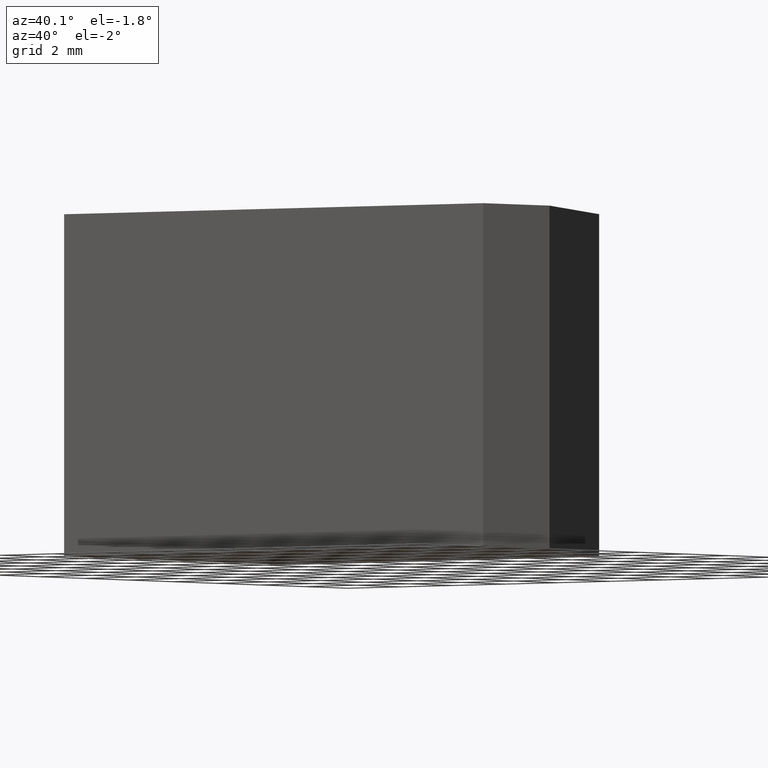
[diagram: clean part render]
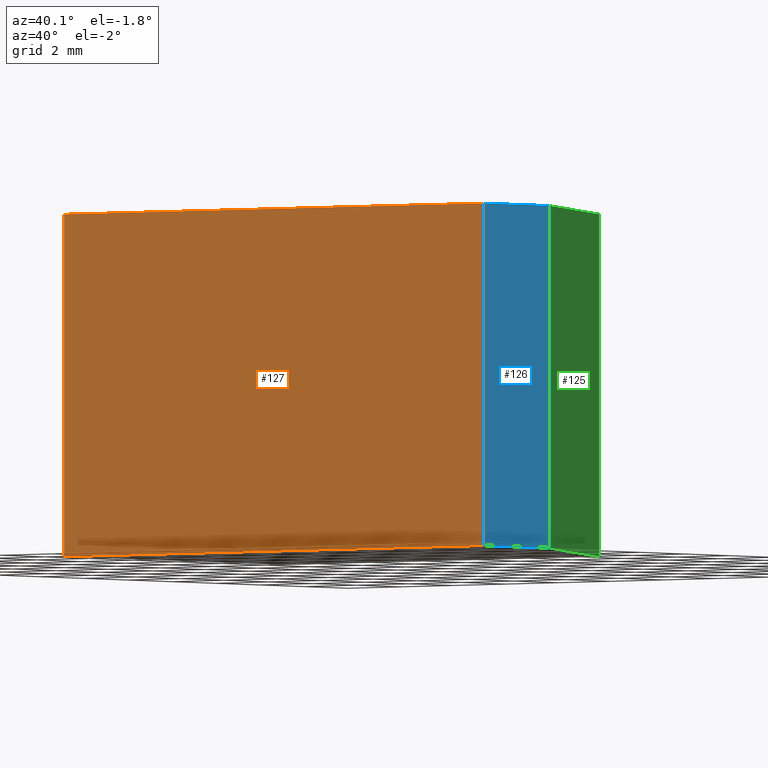
[diagram: same view with three faces highlighted in distinct colors, each labeled with its STEP entity id]
A machine part, auxiliary view with three faces highlighted in distinct colors.
Their STEP definitions:

[orange] entity #127 — the highlighted planar face has unit normal (0, -1, 0).
#21=FACE_OUTER_BOUND('',#28,.T.);
#28=EDGE_LOOP('',(#106,#107,#108,#109));
#31=LINE('',#196,#46);
#37=LINE('',#207,#52);
#43=LINE('',#219,#58);
#44=LINE('',#221,#59);
#46=VECTOR('',#164,10.);
#52=VECTOR('',#172,10.);
#58=VECTOR('',#184,10.);
#59=VECTOR('',#187,10.);
#60=VERTEX_POINT('',#192);
#62=VERTEX_POINT('',#195);
#65=VERTEX_POINT('',#203);
#69=VERTEX_POINT('',#217);
#71=EDGE_CURVE('',#62,#60,#31,.T.);
#77=EDGE_CURVE('',#65,#62,#37,.T.);
#83=EDGE_CURVE('',#60,#69,#43,.T.);
#84=EDGE_CURVE('',#69,#65,#44,.T.);
#106=ORIENTED_EDGE('',*,*,#84,.T.);
#107=ORIENTED_EDGE('',*,*,#77,.T.);
#108=ORIENTED_EDGE('',*,*,#71,.T.);
#109=ORIENTED_EDGE('',*,*,#83,.T.);
#120=PLANE('',#157);
#127=ADVANCED_FACE('',(#21),#120,.T.);
#157=AXIS2_PLACEMENT_3D('',#220,#185,#186);
#164=DIRECTION('',(1.,1.21430643318376E-16,0.));
#172=DIRECTION('',(0.,0.,-1.));
#184=DIRECTION('',(0.,0.,1.));
#185=DIRECTION('center_axis',(1.21430643318376E-16,-1.,0.));
#186=DIRECTION('ref_axis',(0.,0.,-1.));
#187=DIRECTION('',(-1.,-1.21430643318376E-16,0.));
#192=CARTESIAN_POINT('',(16.,-2.77555756156289E-16,-5.));
#195=CARTESIAN_POINT('',(1.11022302462516E-15,-2.22044604925031E-15,-5.));
#196=CARTESIAN_POINT('',(16.,-2.77555756156289E-16,-5.));
#203=CARTESIAN_POINT('',(1.11022302462516E-15,-2.22044604925031E-15,5.));
#207=CARTESIAN_POINT('',(1.11022302462516E-15,-2.22044604925031E-15,0.));
#217=CARTESIAN_POINT('',(16.,-2.77555756156289E-16,5.));
#219=CARTESIAN_POINT('',(16.,-2.77555756156289E-16,0.));
#220=CARTESIAN_POINT('Origin',(16.,-2.77555756156289E-16,0.));
#221=CARTESIAN_POINT('',(16.,-2.77555756156289E-16,5.));

[blue] entity #126 — the highlighted planar face has unit normal (1, 0, 0).
#20=FACE_OUTER_BOUND('',#27,.T.);
#27=EDGE_LOOP('',(#102,#103,#104,#105));
#30=LINE('',#194,#45);
#41=LINE('',#215,#56);
#42=LINE('',#218,#57);
#43=LINE('',#219,#58);
#45=VECTOR('',#163,10.);
#56=VECTOR('',#180,10.);
#57=VECTOR('',#183,10.);
#58=VECTOR('',#184,10.);
#60=VERTEX_POINT('',#192);
#61=VERTEX_POINT('',#193);
#68=VERTEX_POINT('',#213);
#69=VERTEX_POINT('',#217);
#70=EDGE_CURVE('',#60,#61,#30,.T.);
#81=EDGE_CURVE('',#68,#61,#41,.T.);
#82=EDGE_CURVE('',#68,#69,#42,.T.);
#83=EDGE_CURVE('',#60,#69,#43,.T.);
#102=ORIENTED_EDGE('',*,*,#82,.T.);
#103=ORIENTED_EDGE('',*,*,#83,.F.);
#104=ORIENTED_EDGE('',*,*,#70,.T.);
#105=ORIENTED_EDGE('',*,*,#81,.F.);
#119=PLANE('',#156);
#126=ADVANCED_FACE('',(#20),#119,.T.);
#156=AXIS2_PLACEMENT_3D('',#216,#181,#182);
#163=DIRECTION('',(0.,1.,0.));
#180=DIRECTION('',(0.,0.,-1.));
#181=DIRECTION('center_axis',(1.,0.,0.));
#182=DIRECTION('ref_axis',(0.,0.,-1.));
#183=DIRECTION('',(0.,-1.,0.));
#184=DIRECTION('',(0.,0.,1.));
#192=CARTESIAN_POINT('',(16.,-2.77555756156289E-16,-5.));
#193=CARTESIAN_POINT('',(16.,3.,-5.));
#194=CARTESIAN_POINT('',(16.,3.,-5.));
#213=CARTESIAN_POINT('',(16.,3.,5.));
#215=CARTESIAN_POINT('',(16.,3.,0.));
#216=CARTESIAN_POINT('Origin',(16.,3.,0.));
#217=CARTESIAN_POINT('',(16.,-2.77555756156289E-16,5.));
#218=CARTESIAN_POINT('',(16.,3.,5.));
#219=CARTESIAN_POINT('',(16.,-2.77555756156289E-16,0.));

[green] entity #125 — the highlighted planar face has unit normal (0.8682, 0.4961, 0).
#19=FACE_OUTER_BOUND('',#26,.T.);
#26=EDGE_LOOP('',(#98,#99,#100,#101));
#34=LINE('',#201,#49);
#39=LINE('',#211,#54);
#40=LINE('',#214,#55);
#41=LINE('',#215,#56);
#49=VECTOR('',#167,10.);
#54=VECTOR('',#176,10.);
#55=VECTOR('',#179,10.);
#56=VECTOR('',#180,10.);
#61=VERTEX_POINT('',#193);
#64=VERTEX_POINT('',#199);
#67=VERTEX_POINT('',#209);
#68=VERTEX_POINT('',#213);
#74=EDGE_CURVE('',#61,#64,#34,.T.);
#79=EDGE_CURVE('',#67,#64,#39,.T.);
#80=EDGE_CURVE('',#67,#68,#40,.T.);
#81=EDGE_CURVE('',#68,#61,#41,.T.);
#98=ORIENTED_EDGE('',*,*,#80,.T.);
#99=ORIENTED_EDGE('',*,*,#81,.T.);
#100=ORIENTED_EDGE('',*,*,#74,.T.);
#101=ORIENTED_EDGE('',*,*,#79,.F.);
#118=PLANE('',#155);
#125=ADVANCED_FACE('',(#19),#118,.T.);
#155=AXIS2_PLACEMENT_3D('',#212,#177,#178);
#167=DIRECTION('',(-0.496138938356834,0.868243142124459,0.));
#176=DIRECTION('',(0.,0.,-1.));
#177=DIRECTION('center_axis',(0.868243142124459,0.496138938356834,0.));
#178=DIRECTION('ref_axis',(0.,0.,-1.));
#179=DIRECTION('',(0.496138938356834,-0.868243142124459,0.));
#180=DIRECTION('',(0.,0.,-1.));
#193=CARTESIAN_POINT('',(16.,3.,-5.));
#199=CARTESIAN_POINT('',(12.,10.,-5.));
#201=CARTESIAN_POINT('',(12.,10.,-5.));
#209=CARTESIAN_POINT('',(12.,10.,5.));
#211=CARTESIAN_POINT('',(12.,10.,0.));
#212=CARTESIAN_POINT('Origin',(12.,10.,0.));
#213=CARTESIAN_POINT('',(16.,3.,5.));
#214=CARTESIAN_POINT('',(12.,10.,5.));
#215=CARTESIAN_POINT('',(16.,3.,0.));